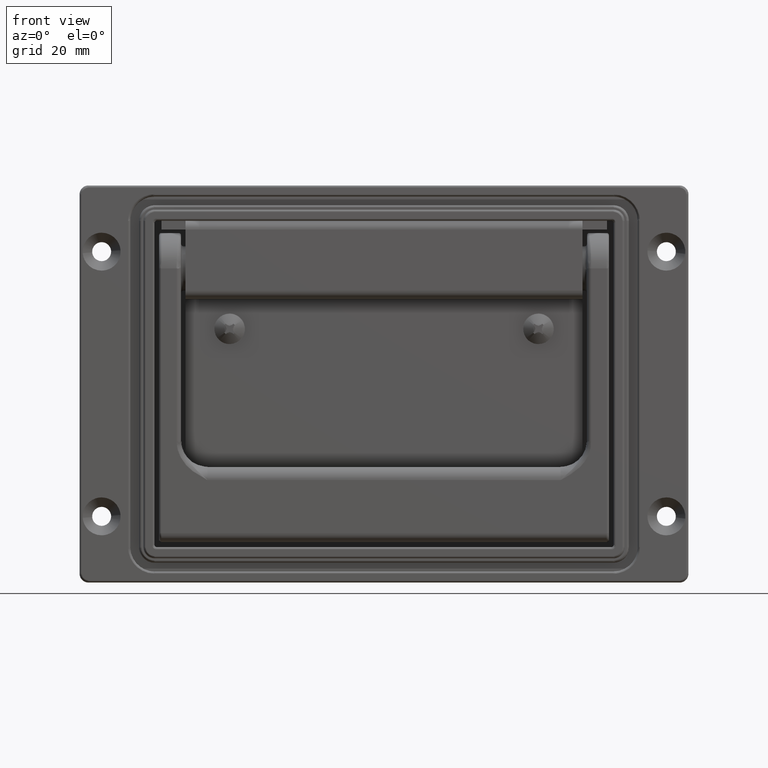
[diagram: clean part render]
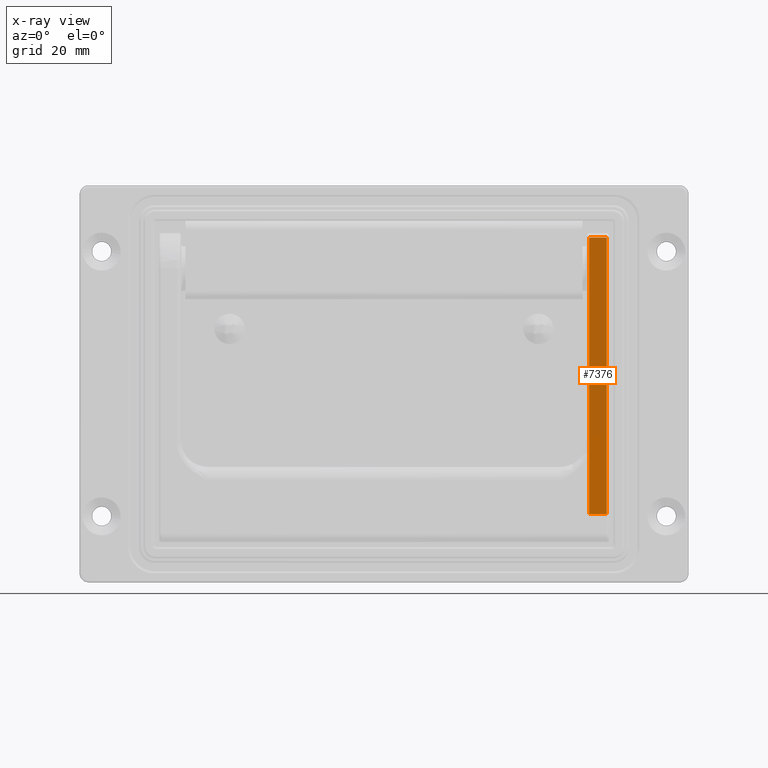
[diagram: x-ray — body ghosted, one internal face saturated and labeled with its STEP entity id]
A machine part, front view, then the same camera in x-ray: the body is ghosted and one INTERNAL B-rep face — a face not visible from any outside direction — is saturated and labeled: STEP entity #7376.
In plain terms, the highlighted face is a freeform B-spline surface patch.
Its self-contained STEP definition (entity closure, byte-faithful):
#4151=CARTESIAN_POINT('',(50.500000000000000,5.170400710450910,6.975789897485281));
#4152=VERTEX_POINT('',#4151);
#4277=CARTESIAN_POINT('',(50.500000000000000,3.653601000000000,-55.657366000000003));
#4278=VERTEX_POINT('',#4277);
#4292=CARTESIAN_POINT('',(50.500000000000000,5.170400710450910,6.975789897485281));
#4293=CARTESIAN_POINT('',(50.500000000000000,3.653601000000000,-55.657366000000003));
#4294=QUASI_UNIFORM_CURVE('',1,(#4292,#4293),.UNSPECIFIED.,.F.,.U.);
#4295=EDGE_CURVE('',#4152,#4278,#4294,.T.);
#5132=CARTESIAN_POINT('',(46.500000000000000,5.170400710450910,6.975789897485281));
#5133=VERTEX_POINT('',#5132);
#5285=CARTESIAN_POINT('',(46.500000000000000,3.653601000000000,-55.657366000000003));
#5286=VERTEX_POINT('',#5285);
#5314=CARTESIAN_POINT('',(46.500000000000000,3.653601000000000,-55.657366000000003));
#5315=CARTESIAN_POINT('',(46.500000000000000,5.170400710450910,6.975789897485281));
#5316=QUASI_UNIFORM_CURVE('',1,(#5314,#5315),.UNSPECIFIED.,.F.,.U.);
#5317=EDGE_CURVE('',#5286,#5133,#5316,.T.);
#7352=CARTESIAN_POINT('',(50.500000000000000,3.653601000000000,-55.657366000000003));
#7353=CARTESIAN_POINT('',(46.500000000000000,3.653601000000000,-55.657366000000003));
#7354=QUASI_UNIFORM_CURVE('',1,(#7352,#7353),.UNSPECIFIED.,.F.,.U.);
#7355=EDGE_CURVE('',#4278,#5286,#7354,.T.);
#7361=CARTESIAN_POINT('',(46.300200007752771,3.577836814686951,-58.785893779549951));
#7362=CARTESIAN_POINT('',(46.300200007752771,5.246164895763973,10.104317677035210));
#7363=CARTESIAN_POINT('',(50.699800099535587,3.577836814686951,-58.785893779549951));
#7364=CARTESIAN_POINT('',(50.699800099535587,5.246164895763973,10.104317677035210));
#7365=B_SPLINE_SURFACE_WITH_KNOTS('',1,1,((#7361,#7363),(#7362,#7364)),.UNSPECIFIED.,.F.,.F.,.U.,(2,2),(2,2),(0.0,68.910409613636219),(0.0,4.399600091782816),.UNSPECIFIED.);
#7366=ORIENTED_EDGE('',*,*,#7355,.T.);
#7367=ORIENTED_EDGE('',*,*,#5317,.T.);
#7368=CARTESIAN_POINT('',(50.500000000000000,5.170400710450910,6.975789897485281));
#7369=CARTESIAN_POINT('',(46.500000000000000,5.170400710450910,6.975789897485281));
#7370=QUASI_UNIFORM_CURVE('',1,(#7368,#7369),.UNSPECIFIED.,.F.,.U.);
#7371=EDGE_CURVE('',#4152,#5133,#7370,.T.);
#7372=ORIENTED_EDGE('',*,*,#7371,.F.);
#7373=ORIENTED_EDGE('',*,*,#4295,.T.);
#7374=EDGE_LOOP('',(#7366,#7367,#7372,#7373));
#7375=FACE_OUTER_BOUND('',#7374,.T.);
#7376=ADVANCED_FACE('',(#7375),#7365,.T.);